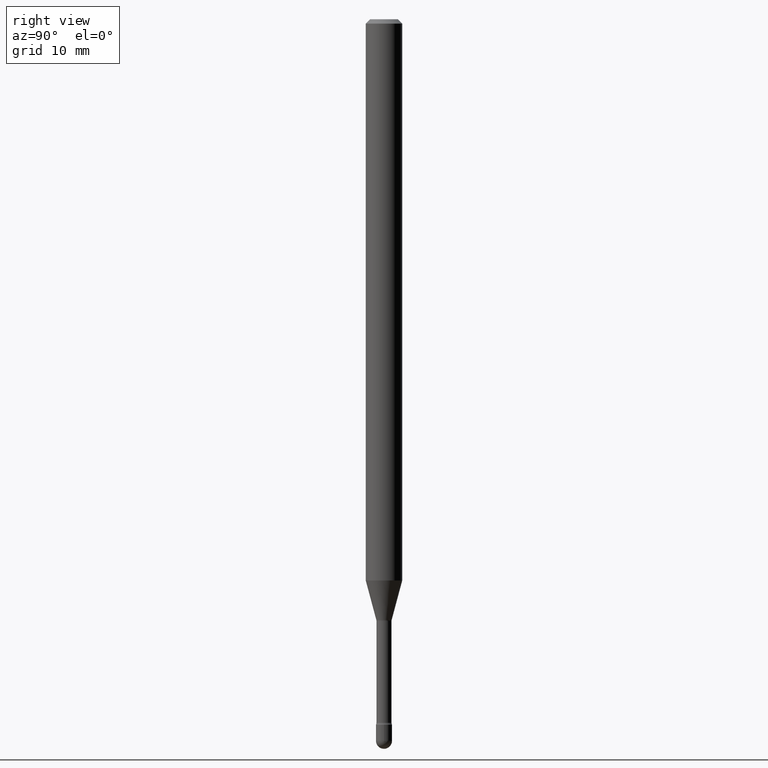
[diagram: clean part render]
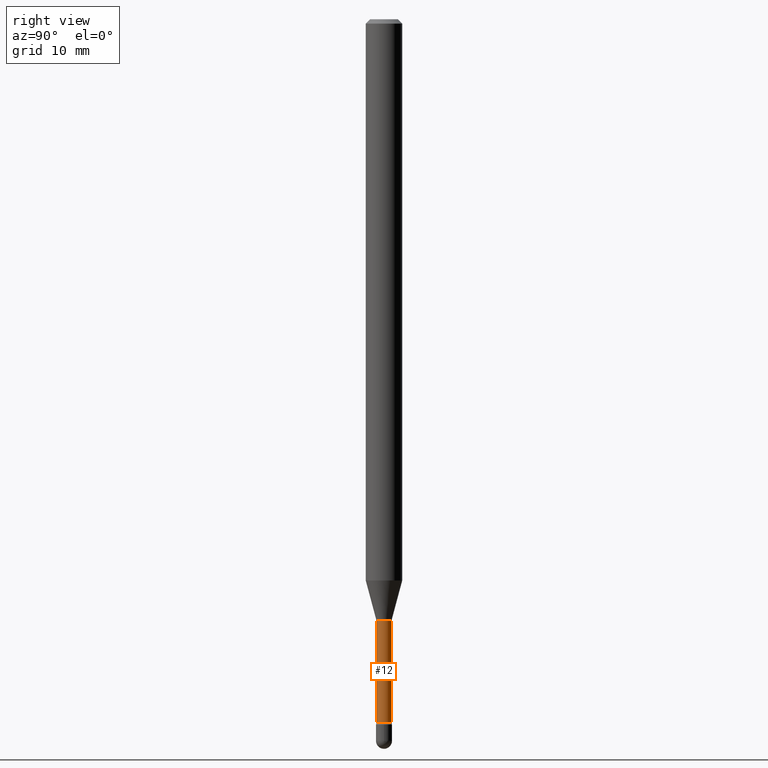
[diagram: same view with one face highlighted and labeled with its STEP entity id]
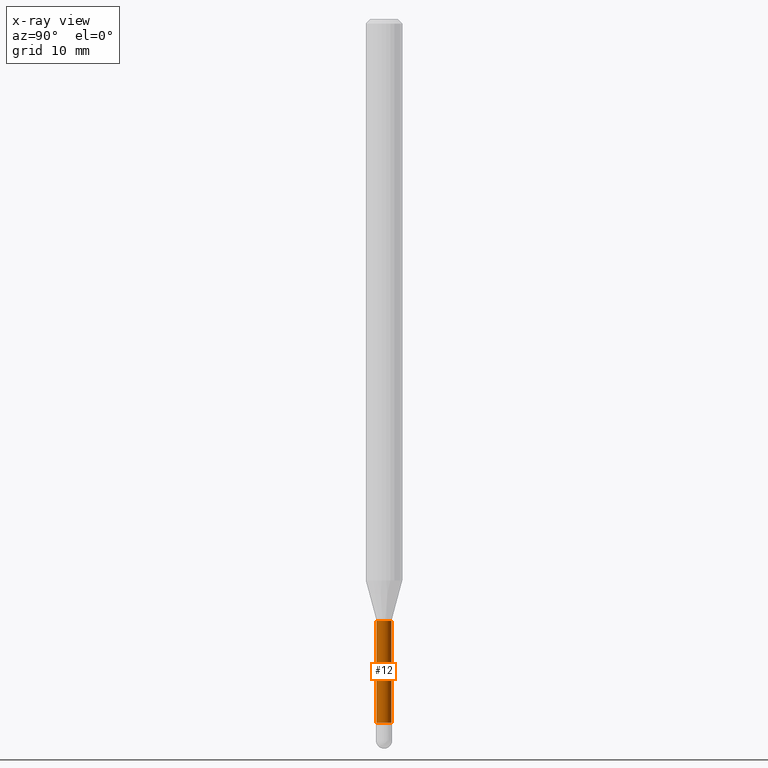
[diagram: x-ray of the same camera — body ghosted, the highlighted face saturated]
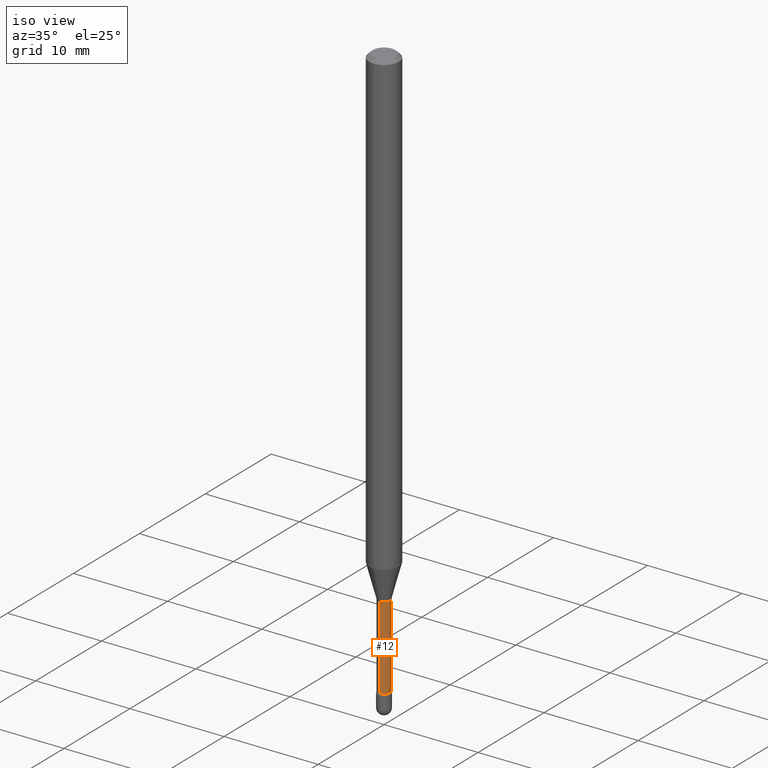
[diagram: same view with one face highlighted and labeled with its STEP entity id]
A machine part, right view. The second image highlights one B-rep face of the part: STEP entity #12.
The next image is the same camera in x-ray: the body ghosted, the highlighted face saturated — about 0% of this face is hidden behind the body in this view.
A second angle (iso view) of the same face is appended — the face is thin or edge-on in the first view.
In plain terms, the highlighted cylindrical surface (edge-blend (fillet) strip) has radius 0.6566 mm, axis along (-0, 0, 1).
Its self-contained STEP definition (entity closure, byte-faithful):
#8 = ORIENTED_EDGE ( 'NONE', *, *, #98, .F. ) ;
#12 = ADVANCED_FACE ( 'NONE', ( #474 ), #35, .T. ) ;
#15 = CARTESIAN_POINT ( 'NONE',  ( -1.805095852181311577E-16, -0.02585000000000842874, -2.410160592130893509 ) ) ;
#27 = VERTEX_POINT ( 'NONE', #262 ) ;
#32 = VECTOR ( 'NONE', #386, 39.37007874015748143 ) ;
#35 = CYLINDRICAL_SURFACE ( 'NONE', #475, 0.02585000000000000839 ) ;
#51 = AXIS2_PLACEMENT_3D ( 'NONE', #375, #142, #146 ) ;
#56 = VERTEX_POINT ( 'NONE', #382 ) ;
#75 = CIRCLE ( 'NONE', #504, 0.02584999999999999798 ) ;
#80 = DIRECTION ( 'NONE',  ( -6.982962677686266711E-15, -1.000000000000000000, 0.000000000000000000 ) ) ;
#84 = EDGE_CURVE ( 'NONE', #27, #56, #471, .T. ) ;
#98 = EDGE_CURVE ( 'NONE', #293, #56, #75, .T. ) ;
#134 = CARTESIAN_POINT ( 'NONE',  ( -1.805095852181900264E-16, -0.02585000000000000839, 5.683309412514536099E-16 ) ) ;
#142 = DIRECTION ( 'NONE',  ( -2.445394526071442946E-29, 3.491587712193716491E-15, 1.000000000000000000 ) ) ;
#146 = DIRECTION ( 'NONE',  ( -6.982962677686265922E-15, -1.000000000000000000, 0.000000000000000000 ) ) ;
#151 = ORIENTED_EDGE ( 'NONE', *, *, #254, .F. ) ;
#154 = ORIENTED_EDGE ( 'NONE', *, *, #84, .T. ) ;
#209 = CARTESIAN_POINT ( 'NONE',  ( -1.169113584055446105E-44, 1.669184350826100908E-30, 4.780733988912460139E-16 ) ) ;
#254 = EDGE_CURVE ( 'NONE', #360, #293, #444, .T. ) ;
#256 = CARTESIAN_POINT ( 'NONE',  ( 1.836752971939859330E-16, 0.02585000000000000839, 3.878158565310384180E-16 ) ) ;
#262 = CARTESIAN_POINT ( 'NONE',  ( 1.895372747640658455E-16, 0.02584999999999160192, -2.410160592130893509 ) ) ;
#273 = DIRECTION ( 'NONE',  ( -2.445394526071442665E-29, 3.491587712193716491E-15, 1.000000000000000000 ) ) ;
#275 = CIRCLE ( 'NONE', #51, 0.02585000000000001533 ) ;
#293 = VERTEX_POINT ( 'NONE', #371 ) ;
#342 = DIRECTION ( 'NONE',  ( -6.982962677686265922E-15, -1.000000000000000000, 3.491587712193714913E-15 ) ) ;
#345 = DIRECTION ( 'NONE',  ( -2.445394526071442946E-29, 3.491587712193716491E-15, 1.000000000000000000 ) ) ;
#360 = VERTEX_POINT ( 'NONE', #15 ) ;
#369 = VECTOR ( 'NONE', #273, 39.37007874015748143 ) ;
#371 = CARTESIAN_POINT ( 'NONE',  ( -1.805095852181395393E-16, -0.02585000000000720055, -2.061974787463811243 ) ) ;
#375 = CARTESIAN_POINT ( 'NONE',  ( 5.893793518949994721E-29, -8.415287107897758310E-15, -2.410160592130893509 ) ) ;
#382 = CARTESIAN_POINT ( 'NONE',  ( 1.836752971940448757E-16, 0.02584999999999279888, -2.061974787463811243 ) ) ;
#386 = DIRECTION ( 'NONE',  ( -2.445394526071442665E-29, 3.491587712193716491E-15, 1.000000000000000000 ) ) ;
#391 = ORIENTED_EDGE ( 'NONE', *, *, #414, .T. ) ;
#414 = EDGE_CURVE ( 'NONE', #360, #27, #275, .T. ) ;
#417 = EDGE_LOOP ( 'NONE', ( #391, #154, #8, #151 ) ) ;
#444 = LINE ( 'NONE', #134, #369 ) ;
#471 = LINE ( 'NONE', #256, #32 ) ;
#474 = FACE_OUTER_BOUND ( 'NONE', #417, .T. ) ;
#475 = AXIS2_PLACEMENT_3D ( 'NONE', #209, #345, #342 ) ;
#476 = CARTESIAN_POINT ( 'NONE',  ( 5.042341858161331216E-29, -7.199565830761894010E-15, -2.061974787463811243 ) ) ;
#504 = AXIS2_PLACEMENT_3D ( 'NONE', #476, #518, #80 ) ;
#518 = DIRECTION ( 'NONE',  ( -2.445394526071442946E-29, 3.491587712193716491E-15, 1.000000000000000000 ) ) ;